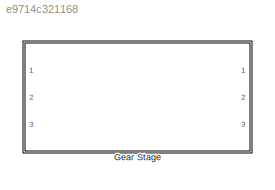
MODEL slx_e9714c321168
KIND library
CONFIG AbsTol = auto
CONFIG EnableMultiTasking = off
CONFIG FixedStep = auto
CONFIG MaxStep = auto
CONFIG MinStep = auto
CONFIG RelTol = 1e-3
CONFIG SampleTimeConstraint = Unconstrained
CONFIG Solver = VariableStepAuto
CONFIG SolverName = VariableStepAuto
CONFIG StartTime = 0.0
CONFIG StopTime = 10.0
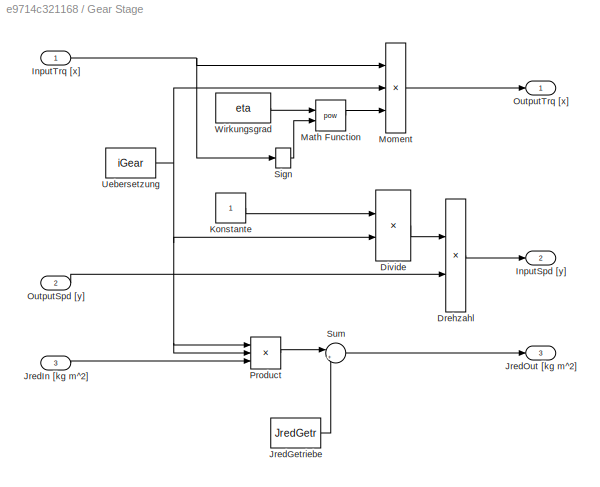
BLOCK [SubSystem] Gear Stage
  Ports = [3, 3]
  RequestExecContextInheritance = off
BLOCK [Product] Gear Stage/Divide
  InputSameDT = off
  Inputs = /*
  OutDataTypeStr = Inherit: Inherit via internal rule
  Ports = [2, 1]
  RndMeth = Floor
  SaturateOnIntegerOverflow = off
BLOCK [Product] Gear Stage/Drehzahl
  InputSameDT = off
  OutDataTypeStr = Inherit: Inherit via internal rule
  Ports = [2, 1]
  RndMeth = Floor
  SaturateOnIntegerOverflow = off
BLOCK [Outport] Gear Stage/InputSpd [y]
  IconDisplay = Port number
  Port = 2
  SampleTime = GlobalSampleTime
BLOCK [Inport] Gear Stage/InputTrq [x]
  IconDisplay = Port number
  SampleTime = LocalSampleTime
BLOCK [Constant] Gear Stage/JredGetriebe
  Value = JredGetr
BLOCK [Inport] Gear Stage/JredIn [kg m^2]
  IconDisplay = Port number
  Port = 3
  SampleTime = LocalSampleTime
BLOCK [Outport] Gear Stage/JredOut [kg m^2]
  IconDisplay = Port number
  Port = 3
  SampleTime = GlobalSampleTime
BLOCK [Constant] Gear Stage/Konstante
BLOCK [Math] Gear Stage/Math Function
  Operator = pow
  Ports = [2, 1]
BLOCK [Product] Gear Stage/Moment
  InputSameDT = off
  Inputs = 3
  OutDataTypeStr = Inherit: Inherit via internal rule
  Ports = [3, 1]
  RndMeth = Floor
  SaturateOnIntegerOverflow = off
BLOCK [Inport] Gear Stage/OutputSpd [y] 
  IconDisplay = Port number
  Port = 2
  SampleTime = LocalSampleTime
BLOCK [Outport] Gear Stage/OutputTrq [x]
  IconDisplay = Port number
  SampleTime = GlobalSampleTime
BLOCK [Product] Gear Stage/Product
  InputSameDT = off
  Inputs = 3
  OutDataTypeStr = Inherit: Inherit via internal rule
  Ports = [3, 1]
  RndMeth = Floor
  SaturateOnIntegerOverflow = off
BLOCK [Signum] Gear Stage/Sign
BLOCK [Sum] Gear Stage/Sum
  IconShape = round
  InputSameDT = off
  Inputs = |++
  OutDataTypeStr = Inherit: Inherit via internal rule
  Ports = [2, 1]
  SaturateOnIntegerOverflow = off
BLOCK [Constant] Gear Stage/Uebersetzung 
  Value = iGear
BLOCK [Constant] Gear Stage/Wirkungsgrad 
  Value = eta
LINE Gear Stage/Divide:1 -> Gear Stage/Drehzahl:1
LINE Gear Stage/Drehzahl:1 -> Gear Stage/InputSpd [y]:1
NET Gear Stage/InputTrq [x]:1 -> Gear Stage/Moment:1, Gear Stage/Sign:1
LINE Gear Stage/JredGetriebe:1 -> Gear Stage/Sum:2
LINE Gear Stage/JredIn [kg m^2]:1 -> Gear Stage/Product:3
LINE Gear Stage/Konstante:1 -> Gear Stage/Divide:1
LINE Gear Stage/Math Function:1 -> Gear Stage/Moment:3
LINE Gear Stage/Moment:1 -> Gear Stage/OutputTrq [x]:1
LINE Gear Stage/OutputSpd [y] :1 -> Gear Stage/Drehzahl:2
LINE Gear Stage/Product:1 -> Gear Stage/Sum:1
LINE Gear Stage/Sign:1 -> Gear Stage/Math Function:2
LINE Gear Stage/Sum:1 -> Gear Stage/JredOut [kg m^2]:1
NET Gear Stage/Uebersetzung :1 -> Gear Stage/Divide:2, Gear Stage/Moment:2, Gear Stage/Product:1, Gear Stage/Product:2
LINE Gear Stage/Wirkungsgrad :1 -> Gear Stage/Math Function:1
note: NET lines group one-source signal fan-out (src -> all destinations, sorted); 1:1 wires keep LINE
